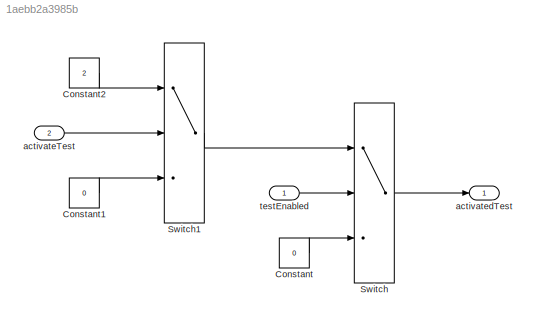
MODEL slx_1aebb2a3985b
KIND model
CONFIG AbsTol = auto
CONFIG EnableMultiTasking = off
CONFIG FixedStep = auto
CONFIG MaxStep = auto
CONFIG MinStep = auto
CONFIG RelTol = 1e-3
CONFIG SampleTimeConstraint = Unconstrained
CONFIG Solver = FixedStepAuto
CONFIG SolverName = FixedStepAuto
CONFIG StartTime = 0.0
CONFIG StopTime = 100
BLOCK [Constant] Constant
  Value = 0
BLOCK [Constant] Constant1
  Value = 0
BLOCK [Constant] Constant2
  Value = 2
BLOCK [Switch] Switch
  Criteria = u2 ~= 0
  InputSameDT = off
  SaturateOnIntegerOverflow = off
  Threshold = ~0
BLOCK [Switch] Switch1
  Criteria = u2 ~= 0
  InputSameDT = off
  SaturateOnIntegerOverflow = off
  Threshold = ~0
BLOCK [Inport] activateTest
  IconDisplay = Port number
  Port = 2
BLOCK [Outport] activatedTest
  IconDisplay = Port number
BLOCK [Inport] testEnabled
  IconDisplay = Port number
LINE Constant1:1 -> Switch1:3
LINE Constant2:1 -> Switch1:1
LINE Constant:1 -> Switch:3
LINE Switch1:1 -> Switch:1
LINE Switch:1 -> activatedTest:1
LINE activateTest:1 -> Switch1:2
LINE testEnabled:1 -> Switch:2
